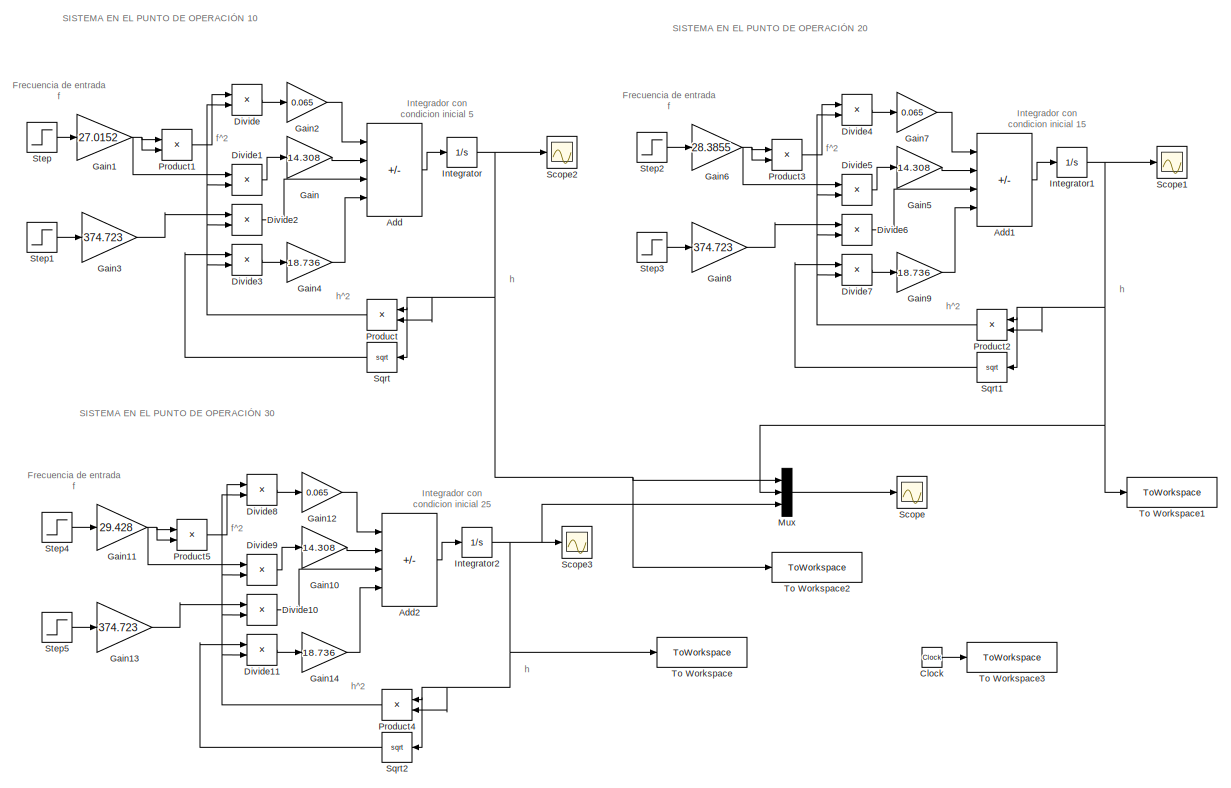
[diagram: root canvas - part 1/2, left side, full height]
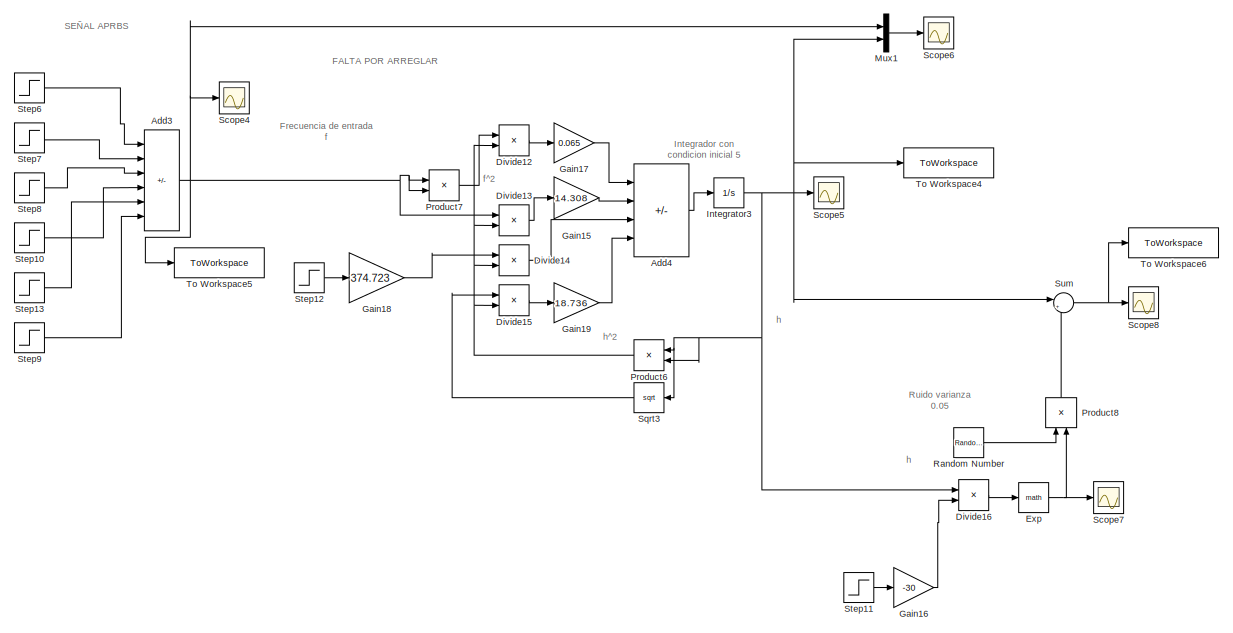
[diagram: root canvas - part 2/2, right side, full height]
MODEL slx_102df5e62272
KIND model
CONFIG AbsTol = auto
CONFIG EnableMultiTasking = off
CONFIG FixedStep = auto
CONFIG MaxStep = auto
CONFIG MinStep = auto
CONFIG RelTol = 1e-3
CONFIG SampleTimeConstraint = Unconstrained
CONFIG Solver = VariableStepAuto
CONFIG SolverName = VariableStepAuto
CONFIG StartTime = 0.0
CONFIG StopTime = 4500
BLOCK [Sum] Add
  IconShape = rectangular
  Inputs = ++--
  Ports = [4, 1]
BLOCK [Sum] Add1
  IconShape = rectangular
  Inputs = ++--
  Ports = [4, 1]
BLOCK [Sum] Add2
  IconShape = rectangular
  Inputs = ++--
  Ports = [4, 1]
BLOCK [Sum] Add3
  IconShape = rectangular
  Inputs = +++--+
  Ports = [6, 1]
BLOCK [Sum] Add4
  IconShape = rectangular
  Inputs = ++--
  Ports = [4, 1]
BLOCK [Clock] Clock
BLOCK [Product] Divide
  Inputs = */
  Ports = [2, 1]
BLOCK [Product] Divide1
  Inputs = */
  Ports = [2, 1]
BLOCK [Product] Divide10
  Inputs = */
  Ports = [2, 1]
BLOCK [Product] Divide11
  Inputs = */
  Ports = [2, 1]
BLOCK [Product] Divide12
  Inputs = */
  Ports = [2, 1]
BLOCK [Product] Divide13
  Inputs = */
  Ports = [2, 1]
BLOCK [Product] Divide14
  Inputs = */
  Ports = [2, 1]
BLOCK [Product] Divide15
  Inputs = */
  Ports = [2, 1]
BLOCK [Product] Divide16
  Inputs = */
  Ports = [2, 1]
BLOCK [Product] Divide2
  Inputs = */
  Ports = [2, 1]
BLOCK [Product] Divide3
  Inputs = */
  Ports = [2, 1]
BLOCK [Product] Divide4
  Inputs = */
  Ports = [2, 1]
BLOCK [Product] Divide5
  Inputs = */
  Ports = [2, 1]
BLOCK [Product] Divide6
  Inputs = */
  Ports = [2, 1]
BLOCK [Product] Divide7
  Inputs = */
  Ports = [2, 1]
BLOCK [Product] Divide8
  Inputs = */
  Ports = [2, 1]
BLOCK [Product] Divide9
  Inputs = */
  Ports = [2, 1]
BLOCK [Math] Exp
  Ports = [1, 1]
BLOCK [Gain] Gain
  Gain = 14.308
BLOCK [Gain] Gain1
  Gain = 27.0152
BLOCK [Gain] Gain10
  Gain = 14.308
BLOCK [Gain] Gain11
  Gain = 29.428
BLOCK [Gain] Gain12
  Gain = 0.065
BLOCK [Gain] Gain13
  Gain = 374.723
BLOCK [Gain] Gain14
  Gain = 18.736
BLOCK [Gain] Gain15
  Gain = 14.308
BLOCK [Gain] Gain16
  Gain = -30
BLOCK [Gain] Gain17
  Gain = 0.065
BLOCK [Gain] Gain18
  Gain = 374.723
BLOCK [Gain] Gain19
  Gain = 18.736
BLOCK [Gain] Gain2
  Gain = 0.065
BLOCK [Gain] Gain3
  Gain = 374.723
BLOCK [Gain] Gain4
  Gain = 18.736
BLOCK [Gain] Gain5
  Gain = 14.308
BLOCK [Gain] Gain6
  Gain = 28.3855
BLOCK [Gain] Gain7
  Gain = 0.065
BLOCK [Gain] Gain8
  Gain = 374.723
BLOCK [Gain] Gain9
  Gain = 18.736
BLOCK [Integrator] Integrator
  InitialCondition = 5
  Ports = [1, 1]
BLOCK [Integrator] Integrator1
  InitialCondition = 15
  Ports = [1, 1]
BLOCK [Integrator] Integrator2
  InitialCondition = 25
  Ports = [1, 1]
BLOCK [Integrator] Integrator3
  InitialCondition = 5
  Ports = [1, 1]
BLOCK [Mux] Mux
  DisplayOption = bar
  Inputs = 3
  Ports = [3, 1]
BLOCK [Mux] Mux1
  DisplayOption = bar
  Inputs = 2
  Ports = [2, 1]
BLOCK [Product] Product
  Ports = [2, 1]
BLOCK [Product] Product1
  Ports = [2, 1]
BLOCK [Product] Product2
  Ports = [2, 1]
BLOCK [Product] Product3
  Ports = [2, 1]
BLOCK [Product] Product4
  Ports = [2, 1]
BLOCK [Product] Product5
  Ports = [2, 1]
BLOCK [Product] Product6
  Ports = [2, 1]
BLOCK [Product] Product7
  Ports = [2, 1]
BLOCK [Product] Product8
  NameLocation = right
  Ports = [2, 1]
BLOCK [RandomNumber] Random Number
  SampleTime = 5
  Variance = 0.05
BLOCK [Scope] Scope
  Floating = off
  NumInputPorts = 1
  Ports = [1]
  ScopeSpecificationString = Simulink.scopes.TimeScopeBlockCfg('CurrentConfiguration', extmgr.ConfigurationSet(extmgr.Configuration('Core','General UI',true),extmgr.Configuration('Core','Source UI',true),extmgr.Configuration('Sources','WiredSimulink',true,'DataLoggingVariableName','ScopeData3'),extmgr.Configuration('Visuals','Time Domain',true,'SerializedDisplays',{struct('MinYLimReal','28.5355','MaxYLimReal','30.53497','YLab...<+1766ch>
BLOCK [Scope] Scope1
  Floating = off
  NumInputPorts = 1
  Ports = [1]
  ScopeSpecificationString = Simulink.scopes.TimeScopeBlockCfg('CurrentConfiguration', extmgr.ConfigurationSet(extmgr.Configuration('Core','General UI',true),extmgr.Configuration('Core','Source UI',true),extmgr.Configuration('Sources','WiredSimulink',true),extmgr.Configuration('Visuals','Time Domain',true,'SerializedDisplays',{struct('MinYLimReal','7.64495','MaxYLimReal','11.19545','YLabelReal','','MinYLimMag','7.64495','MaxY...<+1332ch>
BLOCK [Scope] Scope2
  Floating = off
  NumInputPorts = 1
  Ports = [1]
  ScopeSpecificationString = Simulink.scopes.TimeScopeBlockCfg('CurrentConfiguration', extmgr.ConfigurationSet(extmgr.Configuration('Core','General UI',true),extmgr.Configuration('Core','Source UI',true),extmgr.Configuration('Sources','WiredSimulink',true,'DataLoggingVariableName','ScopeData2'),extmgr.Configuration('Visuals','Time Domain',true,'SerializedDisplays',{struct('MinYLimReal','4.26995','MaxYLimReal','11.57045','YLab...<+1371ch>
BLOCK [Scope] Scope3
  Floating = off
  NumInputPorts = 1
  Ports = [1]
  ScopeSpecificationString = Simulink.scopes.TimeScopeBlockCfg('CurrentConfiguration', extmgr.ConfigurationSet(extmgr.Configuration('Core','General UI',true),extmgr.Configuration('Core','Source UI',true),extmgr.Configuration('Sources','WiredSimulink',true,'DataLoggingVariableName','ScopeData1'),extmgr.Configuration('Visuals','Time Domain',true,'SerializedDisplays',{struct('MinYLimReal','7.64495','MaxYLimReal','11.19545','YLab...<+1371ch>
BLOCK [Scope] Scope4
  Floating = off
  NumInputPorts = 1
  Ports = [1]
  ScopeSpecificationString = Simulink.scopes.TimeScopeBlockCfg('CurrentConfiguration', extmgr.ConfigurationSet(extmgr.Configuration('Core','General UI',true),extmgr.Configuration('Core','Source UI',true),extmgr.Configuration('Sources','WiredSimulink',true,'DataLoggingVariableName','ScopeData1'),extmgr.Configuration('Visuals','Time Domain',true,'SerializedDisplays',{struct('MinYLimReal','26.71325','MaxYLimReal','29.73075','YLa...<+1369ch>
BLOCK [Scope] Scope5
  Floating = off
  NumInputPorts = 1
  Ports = [1]
  ScopeSpecificationString = Simulink.scopes.TimeScopeBlockCfg('CurrentConfiguration', extmgr.ConfigurationSet(extmgr.Configuration('Core','General UI',true),extmgr.Configuration('Core','Source UI',true),extmgr.Configuration('Sources','WiredSimulink',true,'DataLoggingVariableName','ScopeData2'),extmgr.Configuration('Visuals','Time Domain',true,'SerializedDisplays',{struct('MinYLimReal','1.90914','MaxYLimReal','32.81776','YLab...<+1372ch>
BLOCK [Scope] Scope6
  Floating = off
  NumInputPorts = 1
  Ports = [1]
  ScopeSpecificationString = Simulink.scopes.TimeScopeBlockCfg('CurrentConfiguration', extmgr.ConfigurationSet(extmgr.Configuration('Core','General UI',true),extmgr.Configuration('Core','Source UI',true),extmgr.Configuration('Sources','WiredSimulink',true,'DataLoggingVariableName','ScopeData3'),extmgr.Configuration('Visuals','Time Domain',true,'SerializedDisplays',{struct('MinYLimReal','1.90914','MaxYLimReal','32.81776','YLab...<+1379ch>
BLOCK [Scope] Scope7
  Floating = off
  NumInputPorts = 1
  Ports = [1]
  ScopeSpecificationString = Simulink.scopes.TimeScopeBlockCfg('CurrentConfiguration', extmgr.ConfigurationSet(extmgr.Configuration('Core','General UI',true),extmgr.Configuration('Core','Source UI',true),extmgr.Configuration('Sources','WiredSimulink',true,'DataLoggingVariableName','ScopeData4'),extmgr.Configuration('Visuals','Time Domain',true,'SerializedDisplays',{struct('MinYLimReal','0.68809','MaxYLimReal','0.77458','YLabe...<+1360ch>
BLOCK [Scope] Scope8
  Floating = off
  NumInputPorts = 1
  Ports = [1]
  ScopeSpecificationString = Simulink.scopes.TimeScopeBlockCfg('CurrentConfiguration', extmgr.ConfigurationSet(extmgr.Configuration('Core','General UI',true),extmgr.Configuration('Core','Source UI',true),extmgr.Configuration('Sources','WiredSimulink',true,'DataLoggingVariableName','ScopeData5'),extmgr.Configuration('Visuals','Time Domain',true),extmgr.Configuration('Tools','Plot Navigation',true),extmgr.Configuration('Tools',...<+40ch>
BLOCK [Sqrt] Sqrt
BLOCK [Sqrt] Sqrt1
BLOCK [Sqrt] Sqrt2
BLOCK [Sqrt] Sqrt3
BLOCK [Step] Step
  SampleTime = 0
  Time = 0
BLOCK [Step] Step1
  SampleTime = 0
  Time = 0
BLOCK [Step] Step10
  After = 1.043
  SampleTime = 0
  Time = 2151
BLOCK [Step] Step11
  SampleTime = 0
  Time = 0
BLOCK [Step] Step12
  SampleTime = 0
  Time = 0
BLOCK [Step] Step13
  After = 1.3705
  SampleTime = 0
  Time = 2751
BLOCK [Step] Step2
  SampleTime = 0
  Time = 0
BLOCK [Step] Step3
  SampleTime = 0
  Time = 0
BLOCK [Step] Step4
  SampleTime = 0
  Time = 0
BLOCK [Step] Step5
  SampleTime = 0
  Time = 0
BLOCK [Step] Step6
  After = 0
  Before = 27.015
  SampleTime = 0
  Time = 126
BLOCK [Step] Step7
  After = 28.386
  SampleTime = 0
  Time = 126
BLOCK [Step] Step8
  After = 1.043
  SampleTime = 0
  Time = 726
BLOCK [Step] Step9
  After = 2.4129
  SampleTime = 0
  Time = 2877
BLOCK [Sum] Sum
  Inputs = |++
  Ports = [2, 1]
BLOCK [ToWorkspace] To Workspace
  FixptAsFi = on
  MaxDataPoints = inf
  Ports = [1]
  SampleTime = -1
  Save2DSignal = 2-D array (concatenate along first dimension)
  VariableName = out30
BLOCK [ToWorkspace] To Workspace1
  FixptAsFi = on
  MaxDataPoints = inf
  Ports = [1]
  SampleTime = -1
  Save2DSignal = 2-D array (concatenate along first dimension)
  VariableName = out20
BLOCK [ToWorkspace] To Workspace2
  FixptAsFi = on
  MaxDataPoints = inf
  Ports = [1]
  SampleTime = -1
  Save2DSignal = 2-D array (concatenate along first dimension)
  VariableName = out10
BLOCK [ToWorkspace] To Workspace3
  FixptAsFi = on
  MaxDataPoints = inf
  Ports = [1]
  SampleTime = -1
  SaveFormat = Timeseries
  VariableName = time
BLOCK [ToWorkspace] To Workspace4
  FixptAsFi = on
  MaxDataPoints = inf
  Ports = [1]
  SampleTime = -1
  Save2DSignal = 2-D array (concatenate along first dimension)
  VariableName = muestras
BLOCK [ToWorkspace] To Workspace5
  FixptAsFi = on
  MaxDataPoints = inf
  Ports = [1]
  SampleTime = -1
  Save2DSignal = 2-D array (concatenate along first dimension)
  VariableName = input
BLOCK [ToWorkspace] To Workspace6
  FixptAsFi = on
  MaxDataPoints = inf
  Ports = [1]
  SampleTime = -1
  Save2DSignal = 2-D array (concatenate along first dimension)
  VariableName = muestras_con_ruido
ANNOTATION (root): Ruido varianza 0.05
ANNOTATION (root): FALTA POR ARREGLAR
ANNOTATION (root): SEÑAL APRBS
ANNOTATION (root): SISTEMA EN EL PUNTO DE OPERACIÓN 10
ANNOTATION (root): SISTEMA EN EL PUNTO DE OPERACIÓN 20
ANNOTATION (root): SISTEMA EN EL PUNTO DE OPERACIÓN 30
ANNOTATION (root): Frecuencia de entrada f
ANNOTATION (root): Integrador con condicion inicial 15
ANNOTATION (root): Integrador con condicion inicial 25
ANNOTATION (root): Integrador con condicion inicial 5
ANNOTATION (root): f^2
ANNOTATION (root): h
ANNOTATION (root): h^2
LINE Add1:1 -> Integrator1:1
LINE Add2:1 -> Integrator2:1
NET Add3:1 -> Divide13:1, Mux1:1, Product7:1, Product7:2, Scope4:1, To Workspace5:1
LINE Add4:1 -> Integrator3:1
LINE Add:1 -> Integrator:1
LINE Clock:1 -> To Workspace3:1
LINE Divide10:1 -> Add2:3
LINE Divide11:1 -> Gain14:1
LINE Divide12:1 -> Gain17:1
LINE Divide13:1 -> Gain15:1
LINE Divide14:1 -> Add4:3
LINE Divide15:1 -> Gain19:1
LINE Divide16:1 -> Exp:1
LINE Divide1:1 -> Gain:1
LINE Divide2:1 -> Add:3
LINE Divide3:1 -> Gain4:1
LINE Divide4:1 -> Gain7:1
LINE Divide5:1 -> Gain5:1
LINE Divide6:1 -> Add1:3
LINE Divide7:1 -> Gain9:1
LINE Divide8:1 -> Gain12:1
LINE Divide9:1 -> Gain10:1
LINE Divide:1 -> Gain2:1
NET Exp:1 -> Product8:2, Scope7:1
LINE Gain10:1 -> Add2:2
NET Gain11:1 -> Divide9:1, Product5:1, Product5:2
LINE Gain12:1 -> Add2:1
LINE Gain13:1 -> Divide10:1
LINE Gain14:1 -> Add2:4
LINE Gain15:1 -> Add4:2
LINE Gain16:1 -> Divide16:2
LINE Gain17:1 -> Add4:1
LINE Gain18:1 -> Divide14:1
LINE Gain19:1 -> Add4:4
NET Gain1:1 -> Divide1:1, Product1:1, Product1:2
LINE Gain2:1 -> Add:1
LINE Gain3:1 -> Divide2:1
LINE Gain4:1 -> Add:4
LINE Gain5:1 -> Add1:2
NET Gain6:1 -> Divide5:1, Product3:1, Product3:2
LINE Gain7:1 -> Add1:1
LINE Gain8:1 -> Divide6:1
LINE Gain9:1 -> Add1:4
LINE Gain:1 -> Add:2
NET Integrator1:1 -> Mux:2, Product2:1, Product2:2, Scope1:1, Sqrt1:1, To Workspace1:1
NET Integrator2:1 -> Mux:3, Product4:1, Product4:2, Scope3:1, Sqrt2:1, To Workspace:1
NET Integrator3:1 -> Divide16:1, Mux1:2, Product6:1, Product6:2, Scope5:1, Sqrt3:1, Sum:1, To Workspace4:1
NET Integrator:1 -> Mux:1, Product:1, Product:2, Scope2:1, Sqrt:1, To Workspace2:1
LINE Mux1:1 -> Scope6:1
LINE Mux:1 -> Scope:1
LINE Product1:1 -> Divide:1
NET Product2:1 -> Divide4:2, Divide5:2, Divide6:2, Divide7:2
LINE Product3:1 -> Divide4:1
NET Product4:1 -> Divide10:2, Divide11:2, Divide8:2, Divide9:2
LINE Product5:1 -> Divide8:1
NET Product6:1 -> Divide12:2, Divide13:2, Divide14:2, Divide15:2
LINE Product7:1 -> Divide12:1
LINE Product8:1 -> Sum:2
NET Product:1 -> Divide1:2, Divide2:2, Divide3:2, Divide:2
LINE Random Number:1 -> Product8:1
LINE Sqrt1:1 -> Divide7:1
LINE Sqrt2:1 -> Divide11:1
LINE Sqrt3:1 -> Divide15:1
LINE Sqrt:1 -> Divide3:1
LINE Step10:1 -> Add3:4
LINE Step11:1 -> Gain16:1
LINE Step12:1 -> Gain18:1
LINE Step13:1 -> Add3:5
LINE Step1:1 -> Gain3:1
LINE Step2:1 -> Gain6:1
LINE Step3:1 -> Gain8:1
LINE Step4:1 -> Gain11:1
LINE Step5:1 -> Gain13:1
LINE Step6:1 -> Add3:1
LINE Step7:1 -> Add3:2
LINE Step8:1 -> Add3:3
LINE Step9:1 -> Add3:6
LINE Step:1 -> Gain1:1
NET Sum:1 -> Scope8:1, To Workspace6:1
note: NET lines group one-source signal fan-out (src -> all destinations, sorted); 1:1 wires keep LINE
